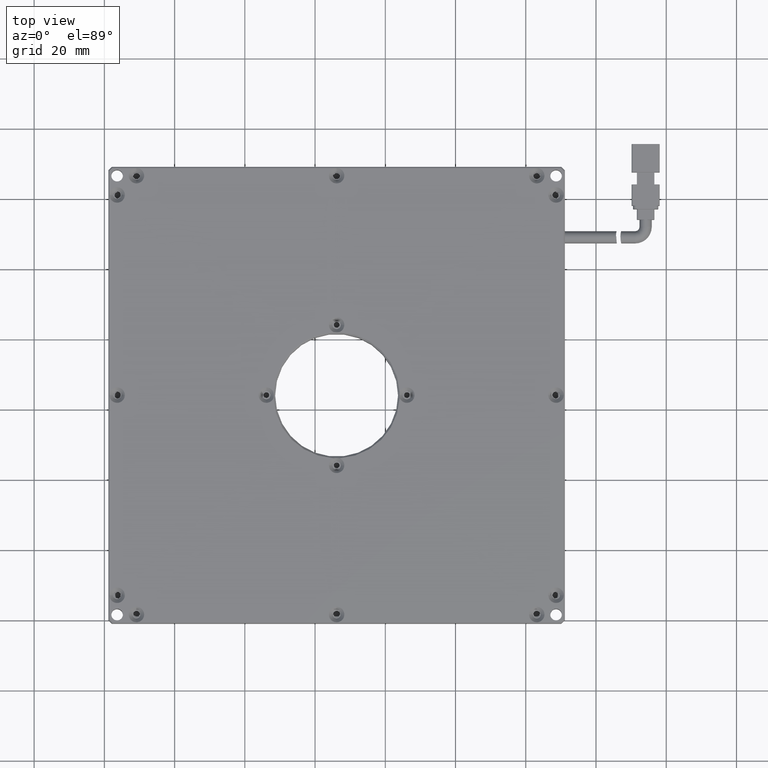
[diagram: clean part render]
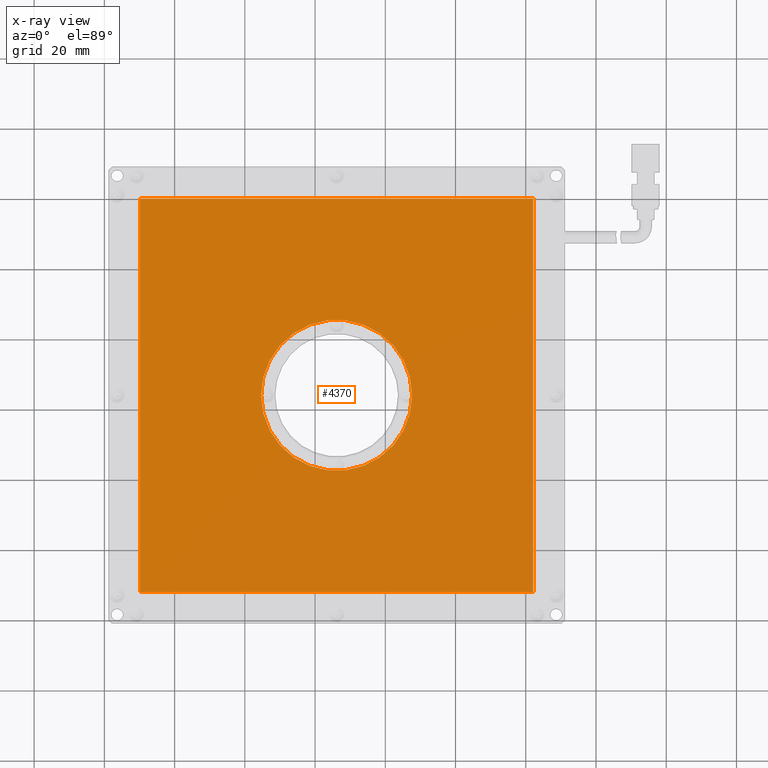
[diagram: x-ray — body ghosted, one internal face saturated and labeled with its STEP entity id]
A machine part, top view, then the same camera in x-ray: the body is ghosted and one INTERNAL B-rep face — a face not visible from any outside direction — is saturated and labeled: STEP entity #4370.
In plain terms, the highlighted planar face has unit normal (0, 0, -1).
Its self-contained STEP definition (entity closure, byte-faithful):
#421 = FACE_OUTER_BOUND ( 'NONE', #5001, .T. ) ;
#1435 = LINE ( 'NONE', #5787, #9002 ) ;
#1908 = CARTESIAN_POINT ( 'NONE',  ( 82.12907407407411100, 80.05944444444445200, 2.000000000000000000 ) ) ;
#2149 = PLANE ( 'NONE',  #12735 ) ;
#4370 = ADVANCED_FACE ( 'NONE', ( #421, #8035 ), #2149, .F. ) ;
#4584 = AXIS2_PLACEMENT_3D ( 'NONE', #20044, #12338, #19974 ) ;
#5001 = EDGE_LOOP ( 'NONE', ( #6654, #14031, #18692, #15540 ) ) ;
#5475 = VECTOR ( 'NONE', #12583, 1000.000000000000000 ) ;
#5602 = CARTESIAN_POINT ( 'NONE',  ( -29.87092592592589200, 80.05944444444445200, 2.000000000000000000 ) ) ;
#5707 = CARTESIAN_POINT ( 'NONE',  ( -29.87092592592589200, -31.94055555555555500, 2.000000000000000000 ) ) ;
#5787 = CARTESIAN_POINT ( 'NONE',  ( -29.87092592592589200, 80.05944444444445200, 2.000000000000000000 ) ) ;
#6151 = VERTEX_POINT ( 'NONE', #5602 ) ;
#6261 = CARTESIAN_POINT ( 'NONE',  ( -29.87092592592589200, -31.94055555555555500, 2.000000000000000000 ) ) ;
#6529 = VERTEX_POINT ( 'NONE', #11267 ) ;
#6654 = ORIENTED_EDGE ( 'NONE', *, *, #8116, .F. ) ;
#6731 = ORIENTED_EDGE ( 'NONE', *, *, #17364, .F. ) ;
#7233 = EDGE_CURVE ( 'NONE', #16434, #12037, #16969, .T. ) ;
#7334 = VERTEX_POINT ( 'NONE', #13096 ) ;
#7418 = LINE ( 'NONE', #15834, #18396 ) ;
#7549 = EDGE_CURVE ( 'NONE', #7334, #6529, #18183, .T. ) ;
#7817 = EDGE_CURVE ( 'NONE', #6151, #16434, #7418, .T. ) ;
#8035 = FACE_BOUND ( 'NONE', #13119, .T. ) ;
#8116 = EDGE_CURVE ( 'NONE', #12037, #11392, #9313, .T. ) ;
#8840 = CARTESIAN_POINT ( 'NONE',  ( 82.12907407407411100, 80.05944444444445200, 2.000000000000000000 ) ) ;
#9002 = VECTOR ( 'NONE', #16758, 1000.000000000000000 ) ;
#9313 = LINE ( 'NONE', #6261, #5475 ) ;
#9477 = DIRECTION ( 'NONE',  ( 0.0000000000000000000, 0.0000000000000000000, 1.000000000000000000 ) ) ;
#11267 = CARTESIAN_POINT ( 'NONE',  ( 47.62907407407411900, 24.05944444444444800, 2.000000000000000000 ) ) ;
#11392 = VERTEX_POINT ( 'NONE', #5707 ) ;
#12037 = VERTEX_POINT ( 'NONE', #12598 ) ;
#12338 = DIRECTION ( 'NONE',  ( 0.0000000000000000000, 0.0000000000000000000, 1.000000000000000000 ) ) ;
#12583 = DIRECTION ( 'NONE',  ( -1.000000000000000000, 0.0000000000000000000, -0.0000000000000000000 ) ) ;
#12598 = CARTESIAN_POINT ( 'NONE',  ( 82.12907407407411100, -31.94055555555555500, 2.000000000000000000 ) ) ;
#12735 = AXIS2_PLACEMENT_3D ( 'NONE', #17581, #16139, #12921 ) ;
#12801 = VECTOR ( 'NONE', #18923, 1000.000000000000000 ) ;
#12921 = DIRECTION ( 'NONE',  ( -1.000000000000000000, 0.0000000000000000000, -0.0000000000000000000 ) ) ;
#13096 = CARTESIAN_POINT ( 'NONE',  ( 4.629074074074115000, 24.05944444444444500, 2.000000000000000000 ) ) ;
#13119 = EDGE_LOOP ( 'NONE', ( #17750, #6731 ) ) ;
#13928 = CARTESIAN_POINT ( 'NONE',  ( 26.12907407407411900, 24.05944444444444500, 2.000000000000000000 ) ) ;
#14031 = ORIENTED_EDGE ( 'NONE', *, *, #7233, .F. ) ;
#14849 = CIRCLE ( 'NONE', #17796, 21.50000000000000000 ) ;
#15540 = ORIENTED_EDGE ( 'NONE', *, *, #16836, .F. ) ;
#15834 = CARTESIAN_POINT ( 'NONE',  ( -29.87092592592589200, 80.05944444444445200, 2.000000000000000000 ) ) ;
#16139 = DIRECTION ( 'NONE',  ( 0.0000000000000000000, 0.0000000000000000000, -1.000000000000000000 ) ) ;
#16434 = VERTEX_POINT ( 'NONE', #8840 ) ;
#16758 = DIRECTION ( 'NONE',  ( 0.0000000000000000000, 1.000000000000000000, 0.0000000000000000000 ) ) ;
#16836 = EDGE_CURVE ( 'NONE', #11392, #6151, #1435, .T. ) ;
#16969 = LINE ( 'NONE', #1908, #12801 ) ;
#17364 = EDGE_CURVE ( 'NONE', #6529, #7334, #14849, .T. ) ;
#17581 = CARTESIAN_POINT ( 'NONE',  ( -29.87092592592589200, 80.05944444444445200, 2.000000000000000000 ) ) ;
#17750 = ORIENTED_EDGE ( 'NONE', *, *, #7549, .F. ) ;
#17796 = AXIS2_PLACEMENT_3D ( 'NONE', #13928, #9477, #18776 ) ;
#18183 = CIRCLE ( 'NONE', #4584, 21.50000000000000000 ) ;
#18396 = VECTOR ( 'NONE', #19240, 1000.000000000000000 ) ;
#18692 = ORIENTED_EDGE ( 'NONE', *, *, #7817, .F. ) ;
#18776 = DIRECTION ( 'NONE',  ( -1.000000000000000000, 0.0000000000000000000, 0.0000000000000000000 ) ) ;
#18923 = DIRECTION ( 'NONE',  ( -0.0000000000000000000, -1.000000000000000000, -0.0000000000000000000 ) ) ;
#19240 = DIRECTION ( 'NONE',  ( 1.000000000000000000, -0.0000000000000000000, 0.0000000000000000000 ) ) ;
#19974 = DIRECTION ( 'NONE',  ( -1.000000000000000000, 0.0000000000000000000, 0.0000000000000000000 ) ) ;
#20044 = CARTESIAN_POINT ( 'NONE',  ( 26.12907407407411900, 24.05944444444444500, 2.000000000000000000 ) ) ;